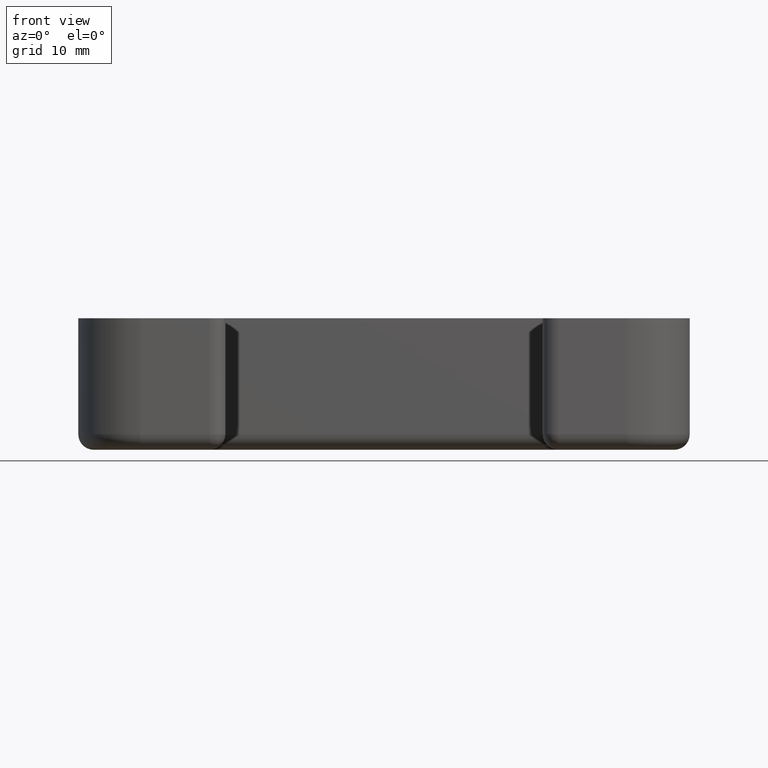
[diagram: clean part render]
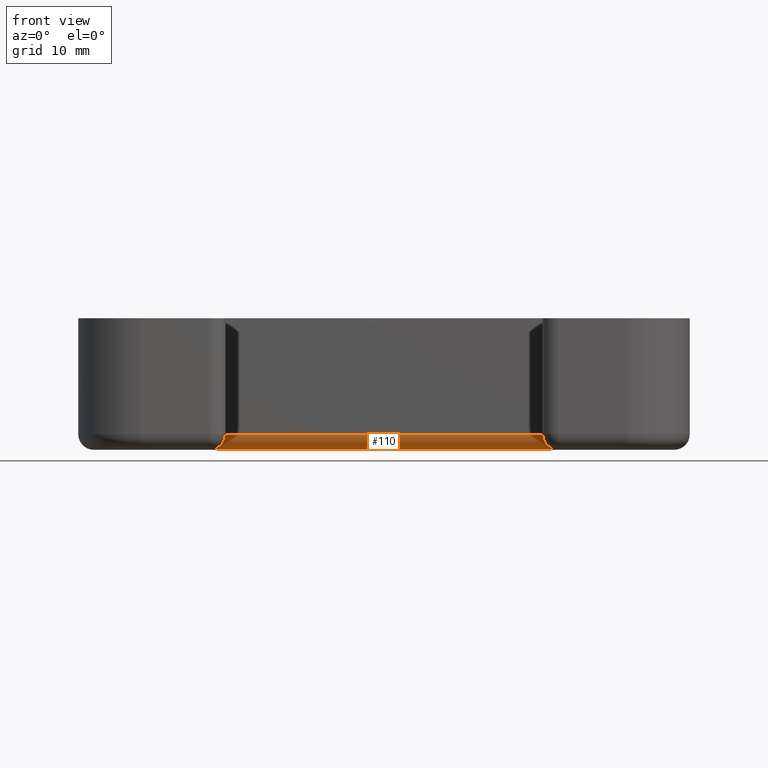
[diagram: same view with one face highlighted and labeled with its STEP entity id]
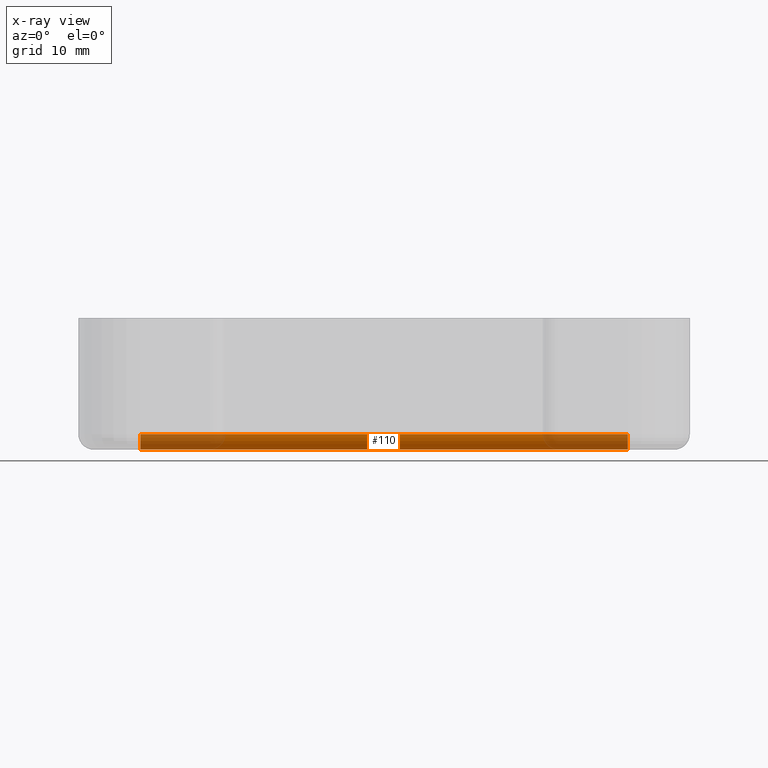
[diagram: x-ray of the same camera — body ghosted, the highlighted face saturated]
A machine part, front view. The second image highlights one B-rep face of the part: STEP entity #110.
The next image is the same camera in x-ray: the body ghosted, the highlighted face saturated — about 34% of this face is hidden behind the body in this view.
In plain terms, the highlighted cylindrical surface (edge-blend (fillet) strip) has radius 2 mm, axis along (1, 0, 0).
Its self-contained STEP definition (entity closure, byte-faithful):
#110 = ADVANCED_FACE( '', ( #218 ), #219, .T. );
#218 = FACE_OUTER_BOUND( '', #361, .T. );
#219 = CYLINDRICAL_SURFACE( '', #362, 2.00000000000000 );
#361 = EDGE_LOOP( '', ( #748, #749, #750, #751 ) );
#362 = AXIS2_PLACEMENT_3D( '', #752, #753, #754 );
#748 = ORIENTED_EDGE( '', *, *, #1142, .T. );
#749 = ORIENTED_EDGE( '', *, *, #1110, .F. );
#750 = ORIENTED_EDGE( '', *, *, #1104, .F. );
#751 = ORIENTED_EDGE( '', *, *, #1094, .F. );
#752 = CARTESIAN_POINT( '', ( -31.5000000000000, 20.2000000000001, -15.0000000000000 ) );
#753 = DIRECTION( '', ( 1.00000000000000, 0.000000000000000, 0.000000000000000 ) );
#754 = DIRECTION( '', ( 0.000000000000000, 0.000000000000000, 1.00000000000000 ) );
#1094 = EDGE_CURVE( '', #1355, #1357, #1358, .T. );
#1104 = EDGE_CURVE( '', #1357, #1373, #1374, .T. );
#1110 = EDGE_CURVE( '', #1373, #1380, #1381, .F. );
#1142 = EDGE_CURVE( '', #1355, #1380, #1426, .T. );
#1355 = VERTEX_POINT( '', #1693 );
#1357 = VERTEX_POINT( '', #1695 );
#1358 = LINE( '', #1696, #1697 );
#1373 = VERTEX_POINT( '', #1715 );
#1374 = CIRCLE( '', #1716, 2.00000000000000 );
#1380 = VERTEX_POINT( '', #1726 );
#1381 = LINE( '', #1727, #1728 );
#1426 = CIRCLE( '', #1797, 2.00000000000000 );
#1693 = CARTESIAN_POINT( '', ( 31.4999999999998, 20.2000000000001, -17.0000000000000 ) );
#1695 = CARTESIAN_POINT( '', ( -31.5000000000002, 20.2000000000001, -17.0000000000000 ) );
#1696 = CARTESIAN_POINT( '', ( -31.5000000000000, 20.2000000000001, -17.0000000000000 ) );
#1697 = VECTOR( '', #2026, 1000.00000000000 );
#1715 = CARTESIAN_POINT( '', ( -31.5000000000002, 18.2000000000001, -15.0000000000000 ) );
#1716 = AXIS2_PLACEMENT_3D( '', #2048, #2049, #2050 );
#1726 = CARTESIAN_POINT( '', ( 31.4999999999998, 18.2000000000001, -15.0000000000000 ) );
#1727 = CARTESIAN_POINT( '', ( 31.4999999999998, 18.2000000000001, -15.0000000000000 ) );
#1728 = VECTOR( '', #2058, 1000.00000000000 );
#1797 = AXIS2_PLACEMENT_3D( '', #2104, #2105, #2106 );
#2026 = DIRECTION( '', ( -1.00000000000000, 0.000000000000000, 0.000000000000000 ) );
#2048 = CARTESIAN_POINT( '', ( -31.5000000000002, 20.2000000000001, -15.0000000000000 ) );
#2049 = DIRECTION( '', ( -1.00000000000000, 0.000000000000000, 0.000000000000000 ) );
#2050 = DIRECTION( '', ( 0.000000000000000, 0.000000000000000, 1.00000000000000 ) );
#2058 = DIRECTION( '', ( -1.00000000000000, 0.000000000000000, 0.000000000000000 ) );
#2104 = CARTESIAN_POINT( '', ( 31.4999999999998, 20.2000000000001, -15.0000000000000 ) );
#2105 = DIRECTION( '', ( -1.00000000000000, 0.000000000000000, 0.000000000000000 ) );
#2106 = DIRECTION( '', ( 0.000000000000000, 0.000000000000000, 1.00000000000000 ) );